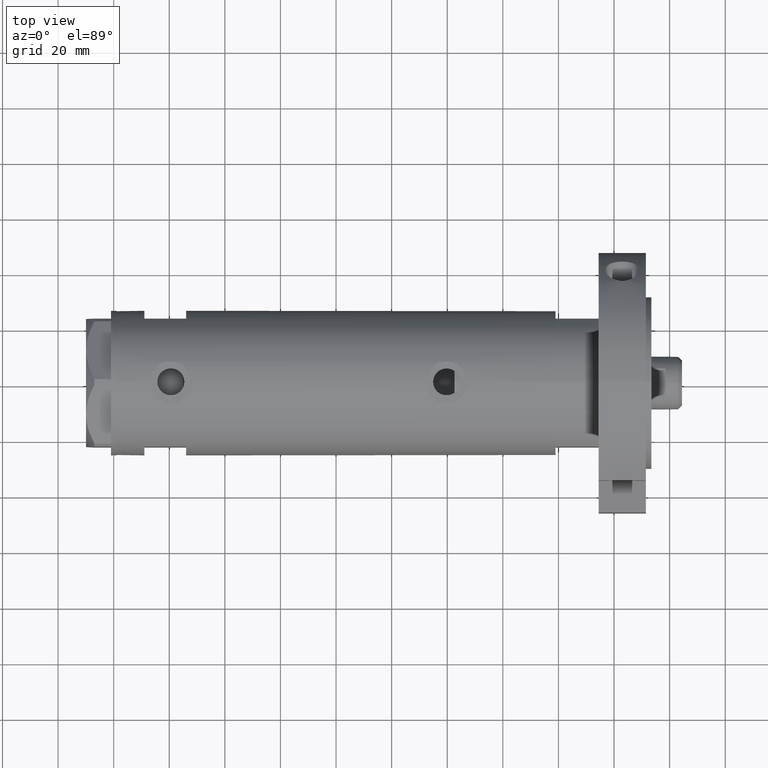
[diagram: clean part render]
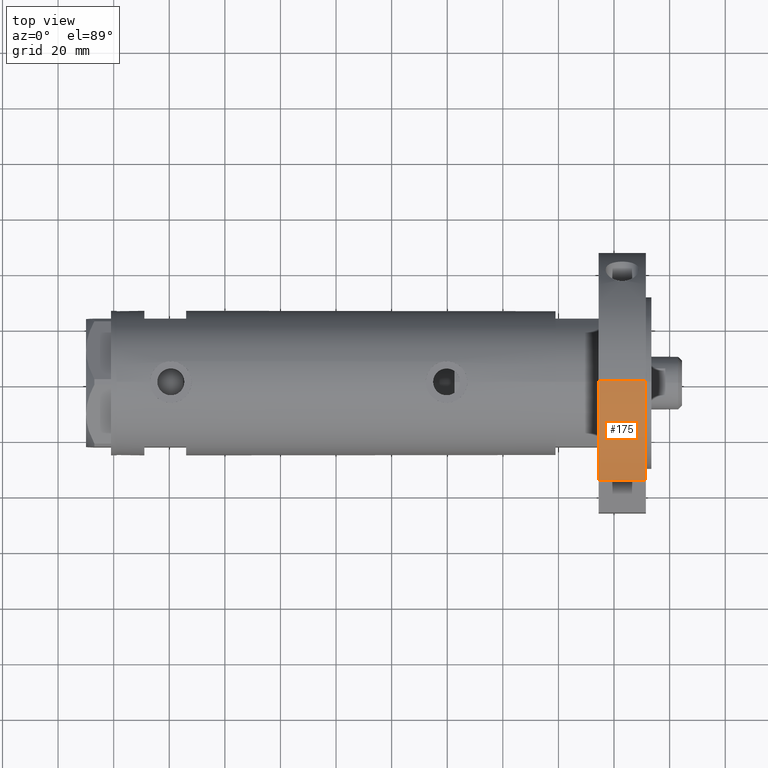
[diagram: same view with one face highlighted and labeled with its STEP entity id]
A machine part, top view. The second image highlights one B-rep face of the part: STEP entity #175.
In plain terms, the highlighted cylindrical surface (partial cylindrical patch) has radius 47 mm, axis along (-1, -0, 0).
Its self-contained STEP definition (entity closure, byte-faithful):
#107 = EDGE_LOOP ( 'NONE', ( #2449, #1011, #7459, #5641 ) ) ;
#175 = ADVANCED_FACE ( 'NONE', ( #2423 ), #4879, .T. ) ;
#228 = LINE ( 'NONE', #2618, #1654 ) ;
#503 = CARTESIAN_POINT ( 'NONE',  ( 30.83217135699462830, 35.47361286101148892, 0.000000000000000000 ) ) ;
#1011 = ORIENTED_EDGE ( 'NONE', *, *, #7634, .T. ) ;
#1100 = VERTEX_POINT ( 'NONE', #1136 ) ;
#1136 = CARTESIAN_POINT ( 'NONE',  ( 46.99999999999999289, 5.755839955992559063E-15, 17.00000000000000000 ) ) ;
#1287 = DIRECTION ( 'NONE',  ( 1.000000000000000000, 0.000000000000000000, 0.000000000000000000 ) ) ;
#1640 = EDGE_CURVE ( 'NONE', #6923, #6886, #7889, .T. ) ;
#1654 = VECTOR ( 'NONE', #5226, 1000.000000000000000 ) ;
#1729 = CARTESIAN_POINT ( 'NONE',  ( 30.83217135699462830, 35.47361286101148892, 17.00000000000000000 ) ) ;
#1773 = CARTESIAN_POINT ( 'NONE',  ( 0.000000000000000000, 0.000000000000000000, 0.000000000000000000 ) ) ;
#2423 = FACE_OUTER_BOUND ( 'NONE', #107, .T. ) ;
#2449 = ORIENTED_EDGE ( 'NONE', *, *, #4546, .F. ) ;
#2569 = CIRCLE ( 'NONE', #4754, 46.99999999999999289 ) ;
#2618 = CARTESIAN_POINT ( 'NONE',  ( 30.83217135699462830, 35.47361286101148892, 0.000000000000000000 ) ) ;
#3007 = DIRECTION ( 'NONE',  ( -0.000000000000000000, -0.000000000000000000, -1.000000000000000000 ) ) ;
#3485 = DIRECTION ( 'NONE',  ( 0.000000000000000000, 0.000000000000000000, 1.000000000000000000 ) ) ;
#3850 = EDGE_CURVE ( 'NONE', #6886, #7648, #228, .T. ) ;
#4055 = AXIS2_PLACEMENT_3D ( 'NONE', #1773, #3485, #4804 ) ;
#4238 = CARTESIAN_POINT ( 'NONE',  ( 0.000000000000000000, 0.000000000000000000, 17.00000000000000000 ) ) ;
#4447 = CARTESIAN_POINT ( 'NONE',  ( 46.99999999999999289, 5.755839955992559063E-15, 0.000000000000000000 ) ) ;
#4546 = EDGE_CURVE ( 'NONE', #1100, #7648, #2569, .T. ) ;
#4754 = AXIS2_PLACEMENT_3D ( 'NONE', #4841, #7924, #1287 ) ;
#4804 = DIRECTION ( 'NONE',  ( 1.000000000000000000, 0.000000000000000000, 0.000000000000000000 ) ) ;
#4839 = DIRECTION ( 'NONE',  ( -1.000000000000000000, 0.000000000000000000, 0.000000000000000000 ) ) ;
#4841 = CARTESIAN_POINT ( 'NONE',  ( 0.000000000000000000, 0.000000000000000000, 17.00000000000000000 ) ) ;
#4864 = DIRECTION ( 'NONE',  ( -0.000000000000000000, -0.000000000000000000, -1.000000000000000000 ) ) ;
#4879 = CYLINDRICAL_SURFACE ( 'NONE', #6829, 46.99999999999999289 ) ;
#5226 = DIRECTION ( 'NONE',  ( -0.000000000000000000, -0.000000000000000000, 1.000000000000000000 ) ) ;
#5641 = ORIENTED_EDGE ( 'NONE', *, *, #3850, .T. ) ;
#6829 = AXIS2_PLACEMENT_3D ( 'NONE', #4238, #3007, #4839 ) ;
#6843 = VECTOR ( 'NONE', #4864, 1000.000000000000000 ) ;
#6886 = VERTEX_POINT ( 'NONE', #503 ) ;
#6923 = VERTEX_POINT ( 'NONE', #4447 ) ;
#7241 = CARTESIAN_POINT ( 'NONE',  ( 46.99999999999999289, 5.755839955992559063E-15, 17.00000000000000000 ) ) ;
#7459 = ORIENTED_EDGE ( 'NONE', *, *, #1640, .T. ) ;
#7634 = EDGE_CURVE ( 'NONE', #1100, #6923, #7829, .T. ) ;
#7648 = VERTEX_POINT ( 'NONE', #1729 ) ;
#7829 = LINE ( 'NONE', #7241, #6843 ) ;
#7889 = CIRCLE ( 'NONE', #4055, 46.99999999999999289 ) ;
#7924 = DIRECTION ( 'NONE',  ( 0.000000000000000000, 0.000000000000000000, 1.000000000000000000 ) ) ;